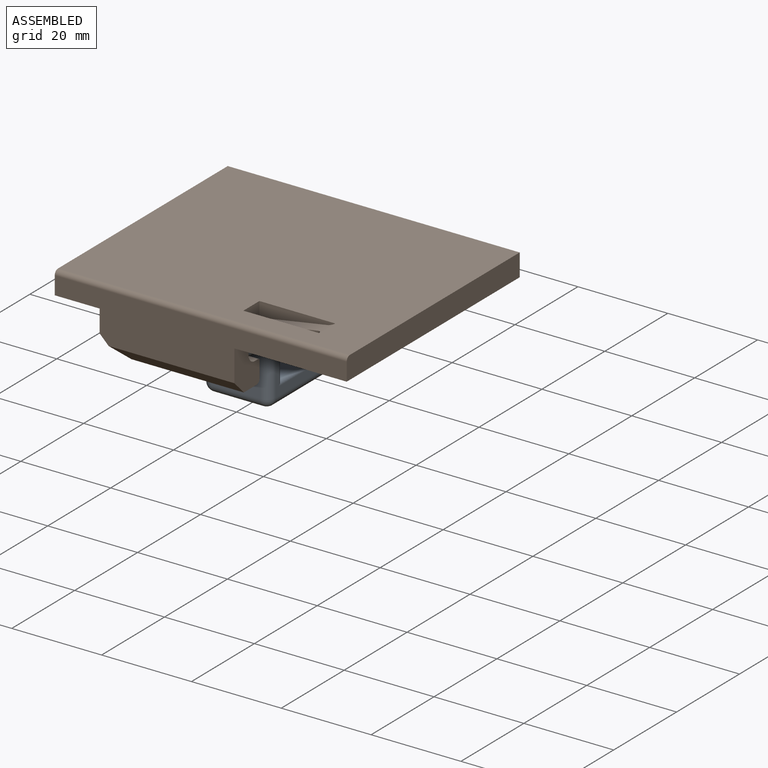
[diagram: assembled view]
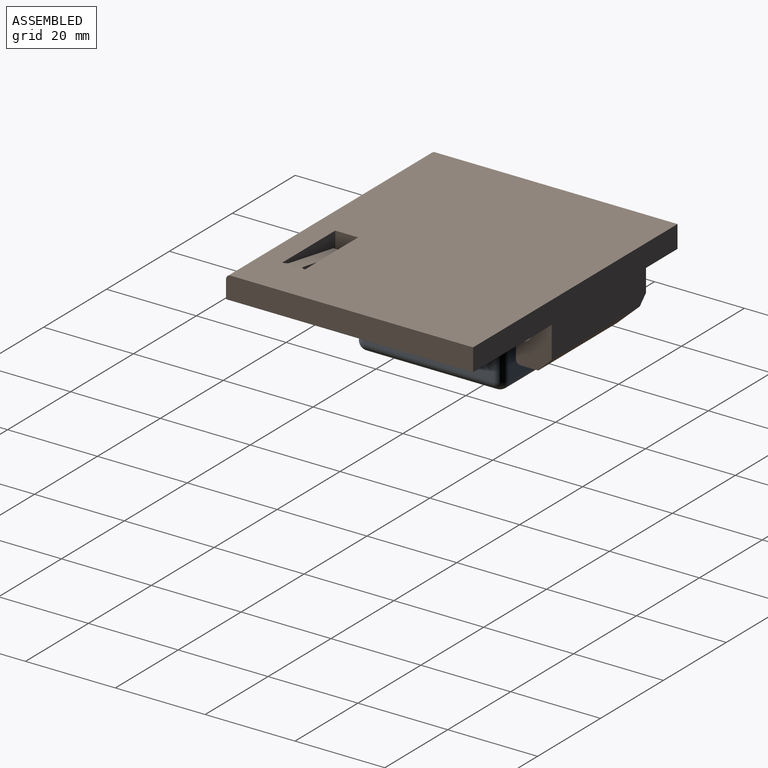
[diagram: assembled view, second angle]
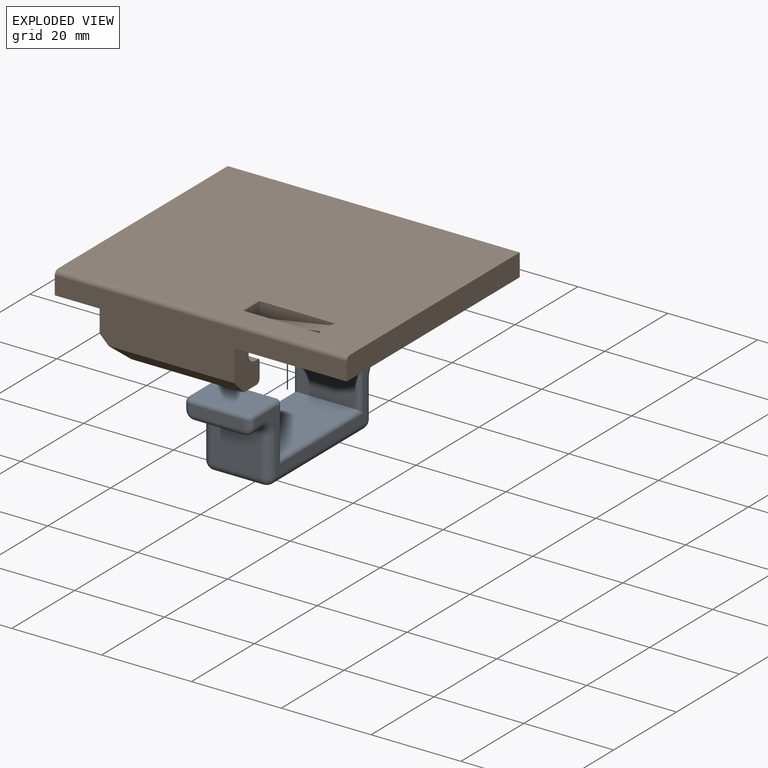
[diagram: exploded view]
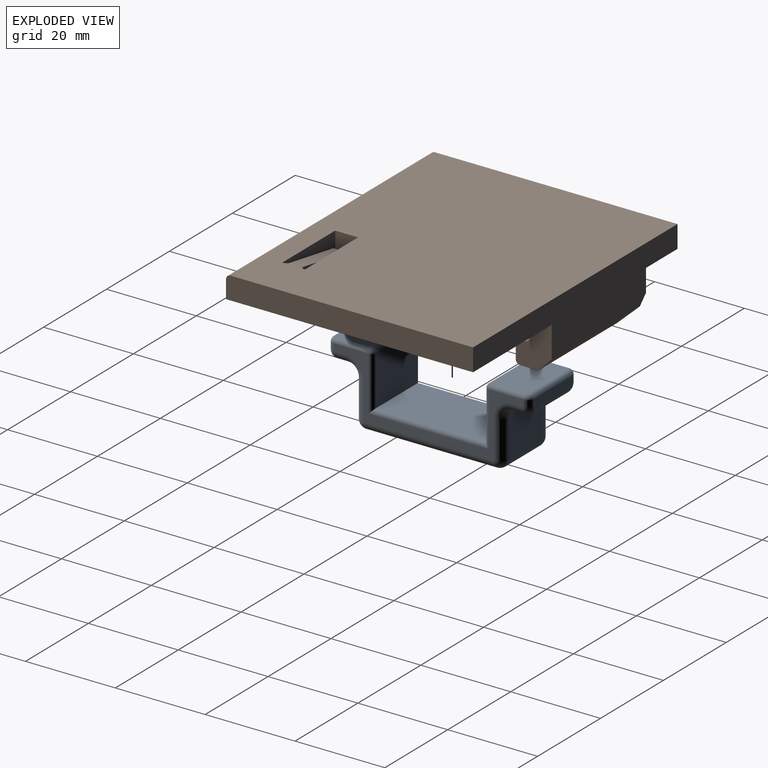
[diagram: exploded view, second angle]
ASSEMBLY  parts=2 mates=3
PART A: 68 faces, bbox 15x45x17 mm
  f0: plane 12x2mm, normal (0,1,0), area 23.9mm2, adj f30,f31,f32,f33,f34,f59
  f1: plane 13x8.1mm, normal (0,0,1), area 105.2mm2, adj f52,f55,f56,f57,f58,f59
  f2: plane 13x11mm, normal (0,-1,0), area 143mm2, adj f3,f46,f49,f52
  f3: plane 24.8x13mm, normal (0,0,1), area 322.4mm2, adj f2,f4,f47,f50
  f4: plane 13x11mm, normal (0,1,0), area 143mm2, adj f3,f48,f51,f67
  f5: plane 13x8.1mm, normal (0,0,1), area 105.2mm2, adj f60,f61,f62,f63,f64,f67
  f6: plane 12x2mm, normal (0,-1,0), area 23.9mm2, adj f35,f36,f37,f38,f39,f60
  f7: plane 11x2.5mm, normal (0,0,-1), area 27.5mm2, adj f15,f19,f21,f37
  f8: plane 11x8.5mm, normal (0,-1,0), area 93.5mm2, adj f14,f16,f18,f19
  f9: plane 29x11mm, normal (0,0,-1), area 319mm2, adj f16,f25,f41,f44
  f10: plane 11x8.5mm, normal (0,1,0), area 93.5mm2, adj f23,f25,f26,f27
  f11: plane 11x2.5mm, normal (0,0,-1), area 27.5mm2, adj f22,f26,f29,f32
  f12: plane 42x14mm, normal (1,0,0), area 110.8mm2, adj f18,f20,f21,f27,f28,f29,f34,f39
  f13: plane 42x14mm, normal (-1,0,0), area 110.8mm2, adj f14,f15,f17,f22,f23,f24,f30,f35
  f14: cylinder r=2mm len=8.5mm, axis (0,0,-1), area 26.7mm2, adj f8,f13,f17,f40
  f15: cylinder r=2mm len=2.5mm, axis (0,1,0), area 7.9mm2, adj f7,f13,f17,f36
  f16: cylinder r=2mm len=11mm, axis (-1,0,0), area 34.6mm2, adj f8,f9,f40,f43
  f17: torus R=4mm, axis (1,0,0), area 13.5mm2, adj f13,f14,f15,f19
  f18: cylinder r=2mm len=8.5mm, axis (0,0,1), area 26.7mm2, adj f8,f12,f20,f43
  f19: cylinder r=2mm len=11mm, axis (-1,0,0), area 34.6mm2, adj f7,f8,f17,f20
  f20: torus R=4mm, axis (1,0,0), area 13.5mm2, adj f12,f18,f19,f21
  f21: cylinder r=2mm len=2.5mm, axis (0,-1,0), area 7.9mm2, adj f7,f12,f20,f38
  f22: cylinder r=2mm len=2.5mm, axis (0,1,0), area 7.9mm2, adj f11,f13,f24,f31
  f23: cylinder r=2mm len=8.5mm, axis (0,0,1), area 26.7mm2, adj f10,f13,f24,f42
  f24: torus R=4mm, axis (1,0,0), area 13.5mm2, adj f13,f22,f23,f26
  f25: cylinder r=2mm len=11mm, axis (1,0,0), area 34.6mm2, adj f9,f10,f42,f45
  f26: cylinder r=2mm len=11mm, axis (-1,0,0), area 34.6mm2, adj f10,f11,f24,f28
  f27: cylinder r=2mm len=8.5mm, axis (0,0,-1), area 26.7mm2, adj f10,f12,f28,f45
  f28: torus R=4mm, axis (1,0,0), area 13.5mm2, adj f12,f26,f27,f29
  f29: cylinder r=2mm len=2.5mm, axis (0,-1,0), area 7.9mm2, adj f11,f12,f28,f33
  f30: cylinder r=1.5mm len=1.5mm, axis (0,0,1), area 3.5mm2, adj f0,f13,f31,f58
  f31: torus R=0.5mm, axis (0,1,0), area 5.4mm2, adj f0,f22,f30,f32
  f32: cylinder r=1.5mm len=11mm, axis (-1,0,0), area 25.9mm2, adj f0,f11,f31,f33
  f33: torus R=0.5mm, axis (0,1,0), area 5.4mm2, adj f0,f29,f32,f34
  f34: cylinder r=1.5mm len=1.5mm, axis (0,0,-1), area 3.5mm2, adj f0,f12,f33,f57
  f35: cylinder r=1.5mm len=1.5mm, axis (0,0,-1), area 3.5mm2, adj f6,f13,f36,f62
  f36: torus R=0.5mm, axis (0,1,0), area 5.4mm2, adj f6,f15,f35,f37
  f37: cylinder r=1.5mm len=11mm, axis (-1,0,0), area 25.9mm2, adj f6,f7,f36,f38
  f38: torus R=0.5mm, axis (0,1,0), area 5.4mm2, adj f6,f21,f37,f39
  f39: cylinder r=1.5mm len=1.5mm, axis (0,0,1), area 3.5mm2, adj f6,f12,f38,f61
  f40: sphere r=2mm, area 6.3mm2, adj f14,f16,f41
  f41: cylinder r=2mm len=29mm, axis (0,1,0), area 91.1mm2, adj f9,f13,f40,f42
  f42: sphere r=2mm, area 6.3mm2, adj f23,f25,f41
  f43: sphere r=2mm, area 6.3mm2, adj f16,f18,f44
  f44: cylinder r=2mm len=29mm, axis (0,-1,0), area 91.1mm2, adj f9,f12,f43,f45
  f45: sphere r=2mm, area 6.3mm2, adj f25,f27,f44
  f46: cylinder r=1mm len=12mm, axis (0,0,-1), area 17.8mm2, adj f2,f13,f47,f54
  f47: cylinder r=1mm len=26.8mm, axis (0,-1,0), area 40.1mm2, adj f3,f13,f46,f48
  f48: cylinder r=1mm len=12mm, axis (0,0,1), area 17.8mm2, adj f4,f13,f47,f66
  f49: cylinder r=1mm len=12mm, axis (0,0,1), area 17.8mm2, adj f2,f12,f50,f53
  f50: cylinder r=1mm len=26.8mm, axis (0,1,0), area 40.1mm2, adj f3,f12,f49,f51
  f51: cylinder r=1mm len=12mm, axis (0,0,-1), area 17.8mm2, adj f4,f12,f50,f65
  f52: cylinder r=1mm len=13mm, axis (-1,0,0), area 20.4mm2, adj f1,f2,f53,f54
  f53: sphere r=1mm, area 1.6mm2, adj f49,f52,f55
  f54: sphere r=1mm, area 1.6mm2, adj f46,f52,f56
  f55: cylinder r=1mm len=7.6mm, axis (0,1,0), area 11.9mm2, adj f1,f12,f53,f57
  f56: cylinder r=1mm len=7.6mm, axis (0,-1,0), area 11.9mm2, adj f1,f13,f54,f58
  f57: torus R=0.5mm, axis (0,0,-1), area 2.8mm2, adj f1,f34,f55,f59
  f58: torus R=0.5mm, axis (0,0,-1), area 2.8mm2, adj f1,f30,f56,f59
  f59: cylinder r=1mm len=12mm, axis (1,0,0), area 18.8mm2, adj f0,f1,f57,f58
  f60: cylinder r=1mm len=12mm, axis (-1,0,0), area 18.8mm2, adj f5,f6,f61,f62
  f61: torus R=0.5mm, axis (0,0,-1), area 2.8mm2, adj f5,f39,f60,f63
  f62: torus R=0.5mm, axis (0,0,-1), area 2.8mm2, adj f5,f35,f60,f64
  f63: cylinder r=1mm len=7.6mm, axis (0,1,0), area 11.9mm2, adj f5,f12,f61,f65
  f64: cylinder r=1mm len=7.6mm, axis (0,-1,0), area 11.9mm2, adj f5,f13,f62,f66
  f65: sphere r=1mm, area 1.6mm2, adj f51,f63,f67
  f66: sphere r=1mm, area 1.6mm2, adj f48,f64,f67
  f67: cylinder r=1mm len=13mm, axis (1,0,0), area 20.4mm2, adj f4,f5,f65,f66
PART B: 73 faces, bbox 65x55x15 mm
  f0: plane 10x8mm, normal (1,0,0), area 58.6mm2, adj f2,f4,f5,f43,f54,f59,f60,f62
  f1: plane 15x3.5mm, normal (0,1,0), area 52.5mm2, adj f37,f38,f61,f66
  f2: plane 15x3.5mm, normal (0,-1,0), area 52.5mm2, adj f0,f41,f62,f63
  f3: plane 65x54mm, normal (0,0,1), area 3424.1mm2, adj f5,f6,f8,f34,f45,f46,f49,f52
  f4: plane 65x55mm, normal (0,0,-1), area 1709.1mm2, adj f0,f5,f6,f7,f8,f18,f19,f20
  f5: plane 65x12mm, normal (0,1,0), area 533mm2, adj f0,f3,f4,f6,f8,f40,f54,f56
  f6: plane 55x5mm, normal (-1,0,0), area 274.8mm2, adj f3,f4,f5,f7,f34
  f7: plane 65x11mm, normal (0,-1,0), area 468mm2, adj f4,f6,f8,f34,f35,f38,f44,f55
  f8: plane 55x5mm, normal (1,0,0), area 274.8mm2, adj f3,f4,f5,f7,f34
  f9: plane 46.5x1mm, normal (0,-1,0), area 46.5mm2, adj f14,f17,f18,f32
  f10: plane 23x1mm, normal (1,0,0), area 23mm2, adj f14,f15,f21,f31
  f11: plane 46.5x1mm, normal (0,1,0), area 46.5mm2, adj f15,f16,f25,f27
  f12: plane 23x1mm, normal (-1,0,0), area 23mm2, adj f16,f17,f22,f28
  f13: plane 47.5x24mm, normal (0,0,-1), area 1139.8mm2, adj f26,f27,f28,f29,f30,f31,f32,f33
  f14: cylinder r=1mm len=1mm, axis (0,0,-1), area 1.6mm2, adj f9,f10,f19,f33
  f15: cylinder r=1mm len=1mm, axis (0,0,1), area 1.6mm2, adj f10,f11,f23,f29
  f16: cylinder r=1mm len=1mm, axis (0,0,-1), area 1.6mm2, adj f11,f12,f24,f26
  f17: cylinder r=1mm len=1mm, axis (0,0,1), area 1.6mm2, adj f9,f12,f20,f30
  f18: cylinder r=0.5mm len=46.5mm, axis (1,0,0), area 36.5mm2, adj f4,f9,f19,f20
  f19: torus R=1.5mm, axis (0,0,1), area 1.5mm2, adj f4,f14,f18,f21
  f20: torus R=1.5mm, axis (0,0,1), area 1.5mm2, adj f4,f17,f18,f22
  f21: cylinder r=0.5mm len=23mm, axis (0,1,0), area 18.1mm2, adj f4,f10,f19,f23
  f22: cylinder r=0.5mm len=23mm, axis (0,-1,0), area 18.1mm2, adj f4,f12,f20,f24
  f23: torus R=1.5mm, axis (0,0,1), area 1.5mm2, adj f4,f15,f21,f25
  f24: torus R=1.5mm, axis (0,0,1), area 1.5mm2, adj f4,f16,f22,f25
  f25: cylinder r=0.5mm len=46.5mm, axis (-1,0,0), area 36.5mm2, adj f4,f11,f23,f24
  f26: torus R=0.5mm, axis (0,0,1), area 1mm2, adj f13,f16,f27,f28
  f27: cylinder r=0.5mm len=46.5mm, axis (1,0,0), area 36.5mm2, adj f11,f13,f26,f29
  f28: cylinder r=0.5mm len=23mm, axis (0,1,0), area 18.1mm2, adj f12,f13,f26,f30
  f29: torus R=0.5mm, axis (0,0,1), area 1mm2, adj f13,f15,f27,f31
  f30: torus R=0.5mm, axis (0,0,1), area 1mm2, adj f13,f17,f28,f32
  f31: cylinder r=0.5mm len=23mm, axis (0,-1,0), area 18.1mm2, adj f10,f13,f29,f33
  f32: cylinder r=0.5mm len=46.5mm, axis (-1,0,0), area 36.5mm2, adj f9,f13,f30,f33
  f33: torus R=0.5mm, axis (0,0,1), area 1mm2, adj f13,f14,f31,f32
  f34: cylinder r=1mm len=65mm, axis (-1,0,0), area 102.1mm2, adj f3,f6,f7,f8
  f35: plane 12x5mm, normal (-1,0,0), area 60mm2, adj f4,f7,f36,f55
  f36: plane 15x9mm, normal (0,1,0), area 127mm2, adj f4,f35,f37,f55,f68
  f37: plane 9x7.5mm, normal (1,0,0), area 52.7mm2, adj f1,f4,f36,f57,f58,f61,f67,f70
  f38: plane 10x8mm, normal (1,0,0), area 58.6mm2, adj f1,f4,f7,f39,f44,f57,f58,f61
  f39: plane 25x8mm, normal (0,0,-1), area 136mm2, adj f38,f44,f55,f66,f67,f68
  f40: plane 12x5mm, normal (-1,0,0), area 60mm2, adj f4,f5,f42,f56
  f41: plane 9x7.5mm, normal (1,0,0), area 52.7mm2, adj f2,f4,f42,f59,f60,f62,f64,f69
  f42: plane 15x9mm, normal (0,-1,0), area 127mm2, adj f4,f40,f41,f56,f65
  f43: plane 25x8mm, normal (0,0,-1), area 136mm2, adj f0,f54,f56,f63,f64,f65
  f44: plane 28x3mm, normal (0,-0.71,-0.71), area 112.4mm2, adj f7,f38,f39,f55
  f45: plane 16.84x5mm, normal (0,1,0), area 84.2mm2, adj f3,f4,f46,f72
  f46: plane 5.1x5mm, normal (1,0,0), area 25.5mm2, adj f3,f4,f45,f52
  f47: plane 13.87x6.28mm, normal (0,1,0), area 60.7mm2, adj f48,f49,f50,f71
  f48: plane 14.17x4.75mm, normal (0.1,0,-0.99), area 43.1mm2, adj f4,f47,f50,f51,f71,f72
  f49: plane 14.84x4.75mm, normal (-0.17,0,0.99), area 45.6mm2, adj f3,f47,f50,f51,f71,f72
  f50: plane 3.94x3mm, normal (-0.99,0,-0.17), area 12mm2, adj f47,f48,f49,f51
  f51: plane 13.84x6.28mm, normal (0,-1,0), area 60.5mm2, adj f48,f49,f50,f72
  f52: plane 16.87x5mm, normal (0,-1,0), area 84.3mm2, adj f3,f4,f46,f53
  f53: plane 5x0.1mm, normal (-1,0,0), area 0.5mm2, adj f3,f4,f52,f71
  f54: plane 28x3mm, normal (0,0.71,-0.71), area 112.4mm2, adj f0,f5,f43,f56
  f55: plane 12x5mm, normal (-0.71,0,-0.71), area 78.2mm2, adj f7,f35,f36,f39,f44,f68
  f56: plane 12x5mm, normal (-0.71,0,-0.71), area 78.2mm2, adj f5,f40,f42,f43,f54,f65
  f57: plane 15x1mm, normal (0,0,1), area 15mm2, adj f37,f38,f61,f70
  f58: plane 15x3mm, normal (0,1,0), area 45mm2, adj f4,f37,f38,f70
  f59: plane 15x1mm, normal (0,0,1), area 15mm2, adj f0,f41,f62,f69
  f60: plane 15x3mm, normal (0,-1,0), area 45mm2, adj f0,f4,f41,f69
  f61: cylinder r=0.5mm len=15mm, axis (1,0,0), area 11.8mm2, adj f1,f37,f38,f57
  f62: cylinder r=0.5mm len=15mm, axis (-1,0,0), area 11.8mm2, adj f0,f2,f41,f59
  f63: cylinder r=1mm len=16mm, axis (1,0,0), area 24.1mm2, adj f0,f2,f43,f64
  f64: cylinder r=1mm len=5mm, axis (0,1,0), area 6.3mm2, adj f41,f43,f63,f65
  f65: cylinder r=1mm len=11mm, axis (1,0,0), area 15.7mm2, adj f42,f43,f56,f64
  f66: cylinder r=1mm len=16mm, axis (-1,0,0), area 24.1mm2, adj f1,f38,f39,f67
  f67: cylinder r=1mm len=5mm, axis (0,1,0), area 6.3mm2, adj f37,f39,f66,f68
  f68: cylinder r=1mm len=11mm, axis (-1,0,0), area 15.7mm2, adj f36,f39,f55,f67
  f69: cylinder r=2mm len=15mm, axis (-1,0,0), area 47.1mm2, adj f0,f41,f59,f60
  f70: cylinder r=2mm len=15mm, axis (1,0,0), area 47.1mm2, adj f37,f38,f57,f58
  f71: cylinder r=1mm len=5.1mm, axis (0,0,-1), area 7.8mm2, adj f3,f4,f47,f48,f49,f53
  f72: cylinder r=1mm len=5.1mm, axis (0,0,1), area 7.8mm2, adj f45,f48,f49,f51
PLACE A t=(-9.05,-10.1,11.93)mm
PLACE B t=(-1.55,-10.2,11.93)mm
MATE planar B.f41 <-> A.f13  axis (1,0,0) through (-9.05,8.46,8.09)mm
MATE planar A.f1 <-> B.f4  axis (0,0,1) through (-1.55,7.34,11.93)mm
MATE planar A.f2 <-> B.f9  axis (0,-1,0) through (-1.55,2.3,5.43)mm
